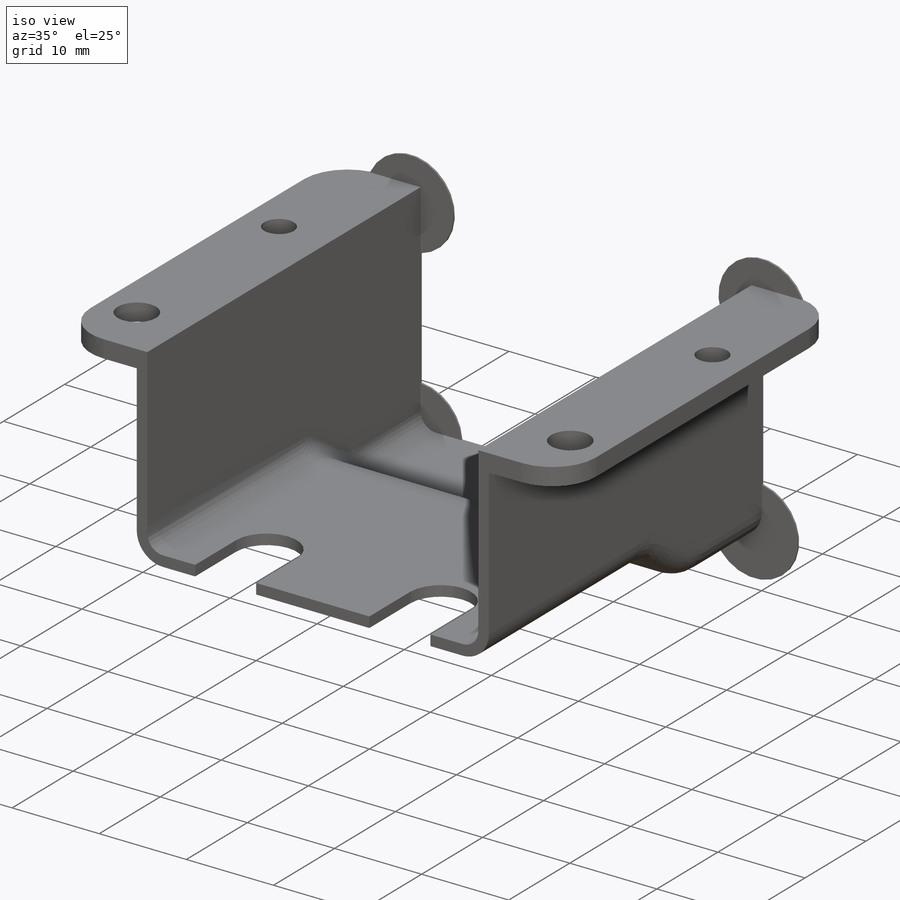
[diagram: iso view]
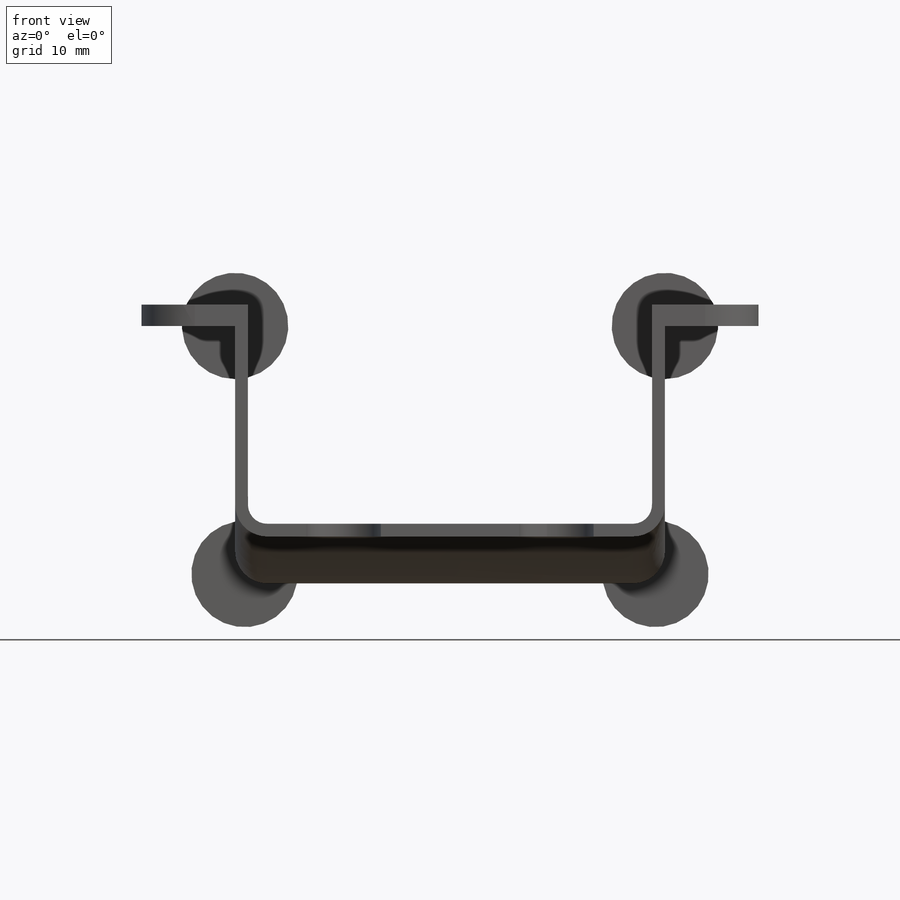
[diagram: front view]
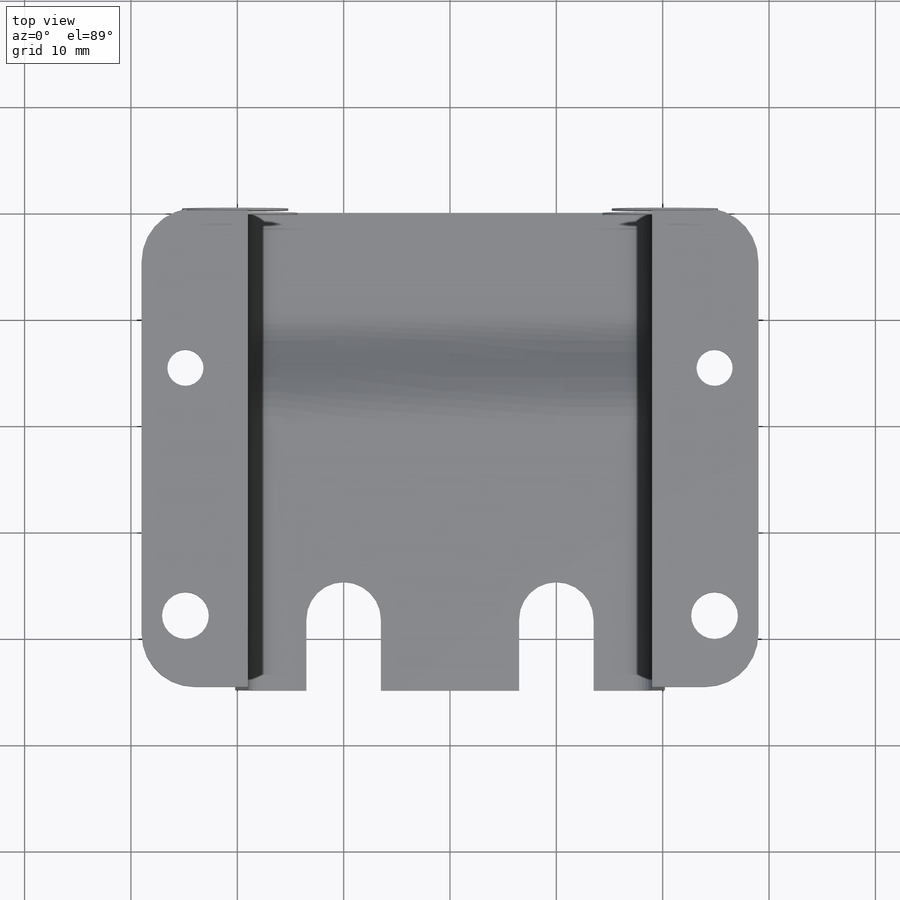
[diagram: top view]
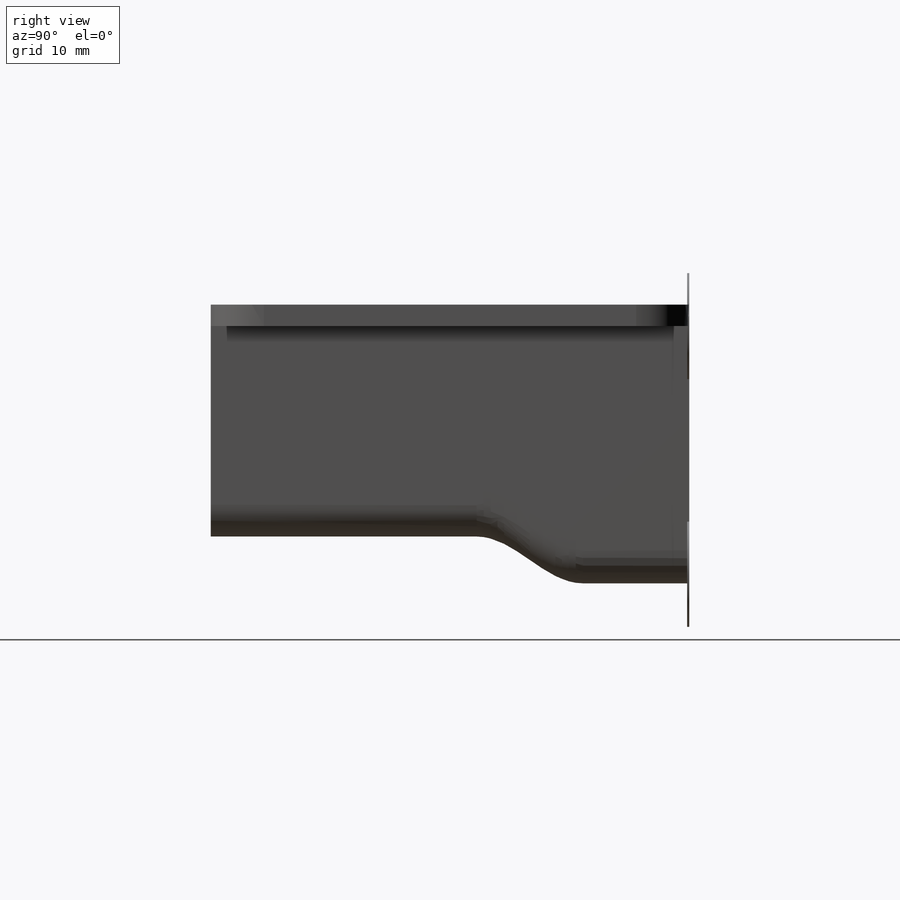
[diagram: right view]
SOLIDWORKS PART (.sldprt)
format: sldprt  version: not decoded by parser v0  size: 443,392 bytes
history: native  units: mm
features: sketch x9, plane x3, extrude x2, material x1, shell x1, cut_extrude x1 (+12 scaffold rows collapsed)
feature tree (29):
  scaffold x12  (default folders/planes/origin — collapsed)
  material  "Material <not specified>"
  plane  "Plane1"  Offset=10mm
  plane  "Plane2"  Offset=20mm
  plane  "Plane3"  Offset=45mm
  sketch  "Back Sketch"  dims[D1=~29.281833mm D2=26.2mm D3=40.4mm]
  sketch  "Third Sketch"  dims[D1=~29.281833mm D2=26.2mm D3=40.4mm]
  sketch  "Second Sketch"  dims[D1=~29.281833mm D2=21.8mm D3=40.4mm]
  sketch  "Front Sketch"  dims[D1=~29.281833mm D2=21.8mm D3=40.4mm]
  sketch  "Third Sketch<2>"
  sketch  "Second Sketch<2>"
  shell  "Shell1"  Thickness=1.2mm
  sketch  "Sketch5"  dims[c1.D1=3.4mm c1.D2=4.4mm c1.D8=5.0mm c2.D1=~43.856856mm c2.D2=~10.873556mm c3.D1=45.0mm c3.D2=~12.803408mm c4.D1=45.0mm c4.D2=~10.241171mm c4.D3=15.0mm c4.D4=38.3mm c4.D5=49.75mm c4.D6=49.75mm c4.D7=58.0mm]
  extrude  "Flange"  Depth=2mm
  sketch  "Sketch6"  dims[c1.D1=~4.970105mm c1.D2=7.0mm c2.D1=38.3mm c2.D3=20.0mm c2.D4=6.7mm c2.D5=7.0mm c3.D4=6.7mm c3.D5=7.0mm]
  cut_extrude  "Hot End Slots"  [1 undecoded]
  sketch  "Sketch7"  dims[D1=10.0mm D2=10.0mm D3=10.0mm D4=10.0mm]
  extrude  "Support Pads"  Depth=0.2mm
decode coverage: 10 of 13 modeling features carry decoded parameters
note: ~ marks probable driven/reference dimensions
note: 1 parameter value undecoded
note: suppression state not decoded; provenance and decode notes live in map.json
